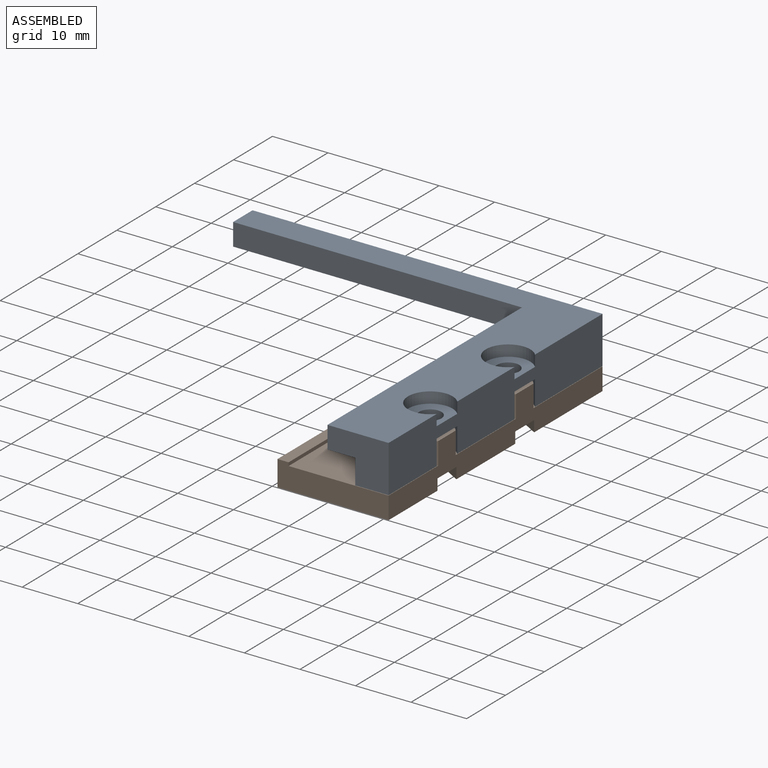
[diagram: assembled view]
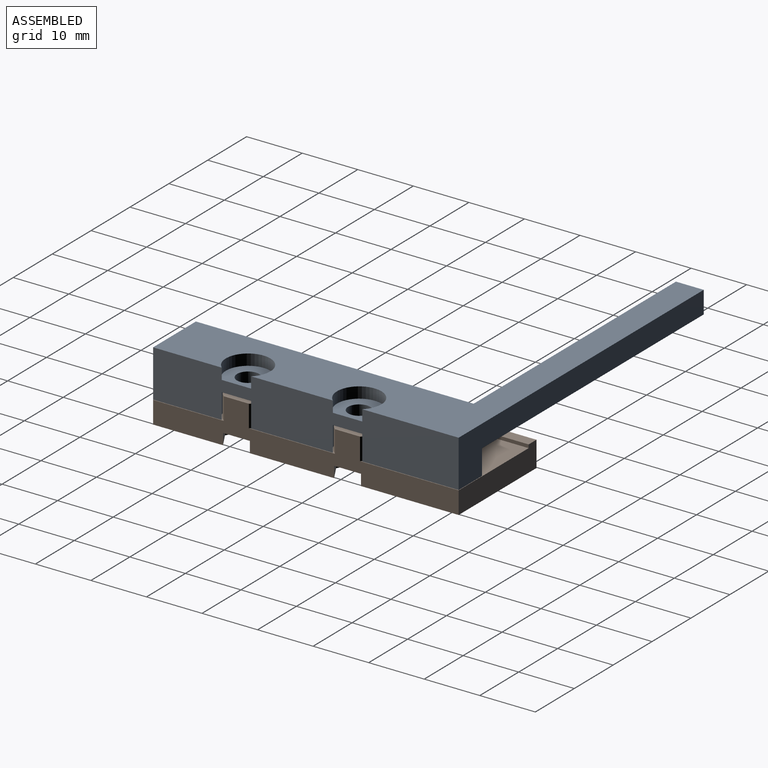
[diagram: assembled view, second angle]
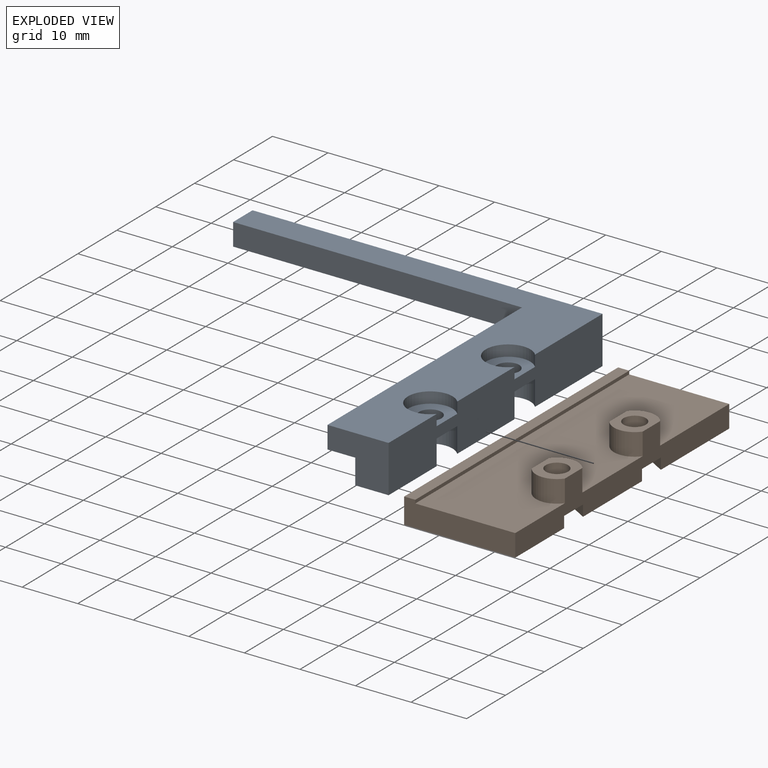
[diagram: exploded view]
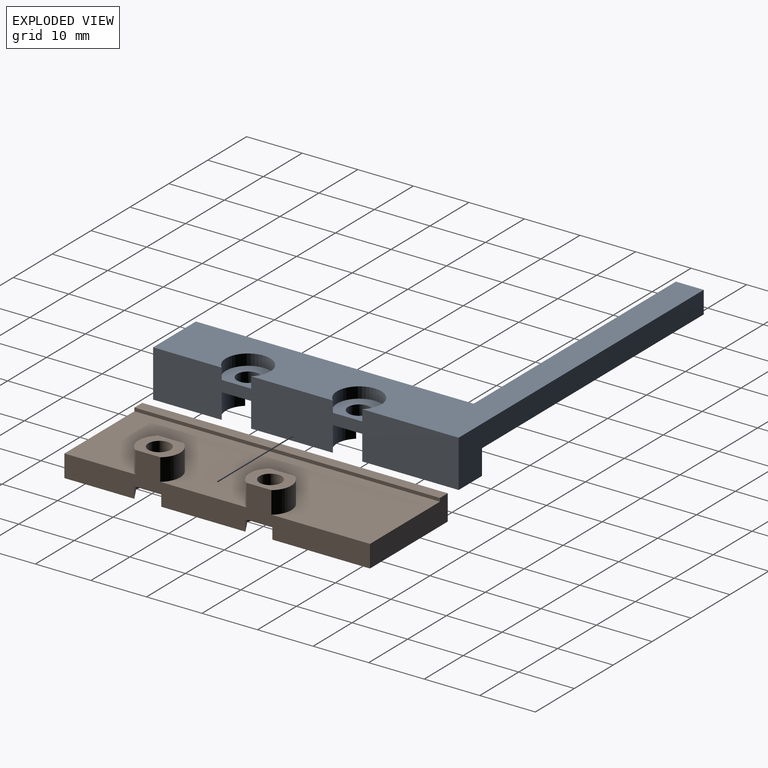
[diagram: exploded view, second angle]
ASSEMBLY  parts=2 mates=2
PART A: 24 faces, bbox 63x55x8.5 mm
  f0: plane 55x8.5mm, normal (1,0,0), area 398.7mm2, adj f3,f4,f5,f6,f10,f11,f13,f14
  f1: plane 14.71x4.5mm, normal (-1,0,0), area 66.2mm2, adj f4,f5,f20,f23
  f2: plane 17.35x4.5mm, normal (-1,0,0), area 78.1mm2, adj f5,f6,f13,f21
  f3: plane 12.35x6mm, normal (0,0,-1), area 68.5mm2, adj f0,f10,f12,f22
  f4: plane 14.71x6mm, normal (0,0,-1), area 77mm2, adj f0,f1,f20,f23
  f5: plane 63x55mm, normal (0,0,-1), area 595.9mm2, adj f0,f1,f2,f6,f7,f8,f9,f10
  f6: plane 63x8.5mm, normal (0,1,0), area 279mm2, adj f0,f2,f5,f7,f11,f13
  f7: plane 5x4mm, normal (-1,0,0), area 20mm2, adj f5,f6,f8,f11
  f8: plane 52x4mm, normal (0,-1,0), area 208mm2, adj f5,f7,f9,f11
  f9: plane 50x4mm, normal (-1,0,0), area 200mm2, adj f5,f8,f10,f11
  f10: plane 11x8.5mm, normal (0,-1,0), area 71mm2, adj f0,f3,f5,f9,f11,f12
  f11: plane 63x55mm, normal (0,0,1), area 771.7mm2, adj f0,f6,f7,f8,f9,f10,f14,f16
  f12: plane 12.35x4.5mm, normal (-1,0,0), area 55.6mm2, adj f3,f5,f10,f22
  f13: plane 17.35x6mm, normal (0,0,-1), area 98.5mm2, adj f0,f2,f6,f21
  f14: cylinder r=4mm len=8mm, axis (0,0,1), area 38.7mm2, adj f0,f11,f15
  f15: plane 8x7mm, normal (0,0,1), area 34.1mm2, adj f0,f14,f19
  f16: cylinder r=4mm len=8mm, axis (0,0,1), area 38.7mm2, adj f0,f11,f17
  f17: plane 8x7mm, normal (0,0,1), area 34.1mm2, adj f0,f16,f18
  f18: cylinder r=2mm len=4mm, axis (0,0,1), area 25.1mm2, adj f5,f17
  f19: cylinder r=2mm len=4mm, axis (0,0,1), area 25.1mm2, adj f5,f15
  f20: cylinder r=4mm len=6mm, axis (0,0,-1), area 30.5mm2, adj f0,f1,f4,f5
  f21: cylinder r=4mm len=6mm, axis (0,0,-1), area 30.5mm2, adj f0,f2,f5,f13
  f22: cylinder r=4mm len=6mm, axis (0,0,-1), area 30.5mm2, adj f0,f3,f5,f12
  f23: cylinder r=4mm len=6mm, axis (0,0,-1), area 30.5mm2, adj f0,f1,f4,f5
PART B: 30 faces, bbox 20x55x8 mm
  f0: plane 55x8mm, normal (1,0,0), area 236.6mm2, adj f3,f4,f6,f7,f10,f12,f13,f14
  f1: cylinder r=2mm len=6mm, axis (0,0,-1), area 75.4mm2, adj f13,f29
  f2: cylinder r=2mm len=6mm, axis (0,0,-1), area 75.4mm2, adj f17,f23
  f3: plane 55x18mm, normal (0,0,1), area 910.8mm2, adj f0,f4,f6,f8,f10,f11,f12,f14
  f4: plane 20x4.6mm, normal (0,1,0), area 81.2mm2, adj f0,f3,f5,f7,f8,f9
  f5: plane 55x4.6mm, normal (-1,0,0), area 253mm2, adj f4,f6,f7,f9
  f6: plane 20x4.6mm, normal (0,-1,0), area 81.2mm2, adj f0,f3,f5,f7,f8,f9
  f7: plane 55x20mm, normal (0,0,-1), area 1015.6mm2, adj f0,f4,f5,f6,f18,f19,f20,f21
  f8: plane 55x0.6mm, normal (1,0,0), area 33mm2, adj f3,f4,f6,f9
  f9: plane 55x2mm, normal (0,0,1), area 110mm2, adj f4,f5,f6,f8
  f10: cylinder r=3.75mm len=6mm, axis (0,0,-1), area 27.8mm2, adj f0,f3,f11,f13
  f11: plane 4.5x4mm, normal (-1,0,0), area 18mm2, adj f3,f10,f12,f13
  f12: cylinder r=3.75mm len=6mm, axis (0,0,-1), area 27.8mm2, adj f0,f3,f11,f13
  f13: plane 7.5x6mm, normal (0,0,1), area 27mm2, adj f0,f1,f10,f11,f12
  f14: cylinder r=3.75mm len=6mm, axis (0,0,-1), area 27.8mm2, adj f0,f3,f15,f17
  f15: plane 4.5x4mm, normal (-1,0,0), area 18mm2, adj f3,f14,f16,f17
  f16: cylinder r=3.75mm len=6mm, axis (0,0,-1), area 27.8mm2, adj f0,f3,f15,f17
  f17: plane 7.5x6mm, normal (0,0,1), area 27mm2, adj f0,f2,f14,f15,f16
  f18: plane 3x2mm, normal (-0.5,-0.87,0), area 6.9mm2, adj f0,f7,f22,f23
  f19: plane 3x2mm, normal (-0.5,0.87,0), area 6.9mm2, adj f0,f7,f20,f23
  f20: plane 3.6x2.08mm, normal (0.5,0.87,0), area 8.3mm2, adj f7,f19,f21,f23
  f21: plane 4.16x2mm, normal (1,0,0), area 8.3mm2, adj f7,f20,f22,f23
  f22: plane 3.6x2.08mm, normal (0.5,-0.87,0), area 8.3mm2, adj f7,f18,f21,f23
  f23: plane 8.31x6.6mm, normal (0,0,-1), area 29.6mm2, adj f0,f2,f18,f19,f20,f21,f22
  f24: plane 3x2mm, normal (-0.5,-0.87,0), area 6.9mm2, adj f0,f7,f28,f29
  f25: plane 3x2mm, normal (-0.5,0.87,0), area 6.9mm2, adj f0,f7,f26,f29
  f26: plane 3.6x2.08mm, normal (0.5,0.87,0), area 8.3mm2, adj f7,f25,f27,f29
  f27: plane 4.16x2mm, normal (1,0,0), area 8.3mm2, adj f7,f26,f28,f29
  f28: plane 3.6x2.08mm, normal (0.5,-0.87,0), area 8.3mm2, adj f7,f24,f27,f29
  f29: plane 8.31x6.6mm, normal (0,0,-1), area 29.6mm2, adj f0,f1,f24,f25,f26,f27,f28
PLACE A t=(-16.9,-7.42,-6.17)mm
PLACE B t=(2.42,22.89,-14.73)mm
MATE planar B.f0 <-> A.f0  axis (1,0,0) through (22.42,-4.79,-12.04)mm
MATE planar A.f10 <-> B.f6  axis (0,-1,0) through (17.87,-32.11,-5.79)mm
